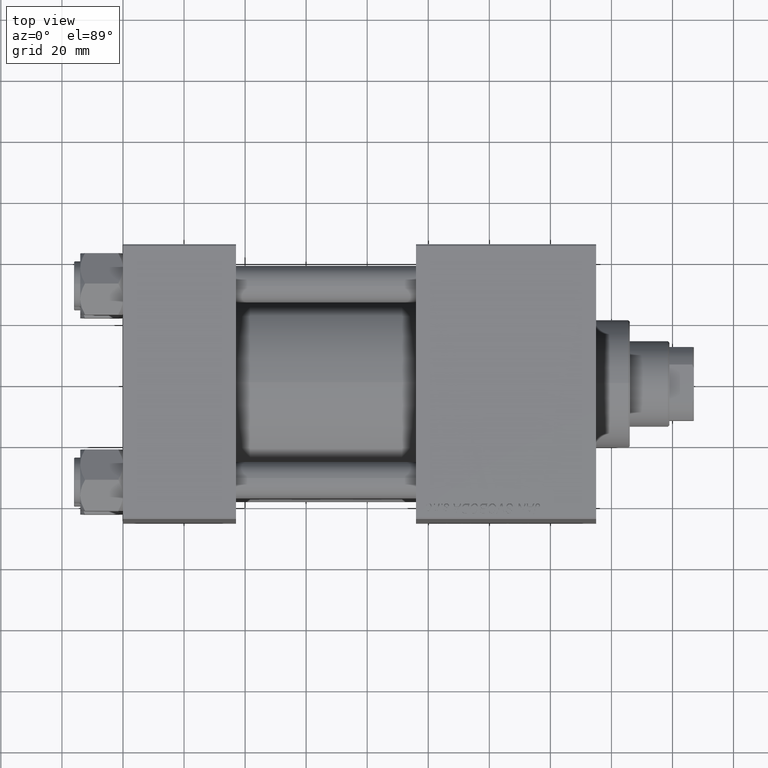
[diagram: clean part render]
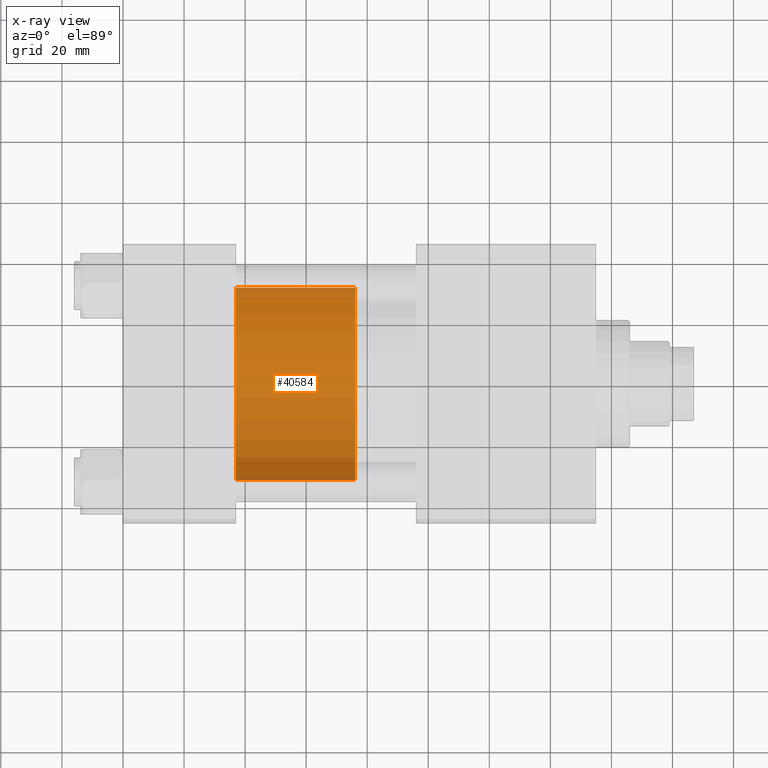
[diagram: x-ray — body ghosted, one internal face saturated and labeled with its STEP entity id]
A machine part, top view, then the same camera in x-ray: the body is ghosted and one INTERNAL B-rep face — a face not visible from any outside direction — is saturated and labeled: STEP entity #40584.
In plain terms, the highlighted cylindrical surface (partial cylindrical patch) has radius 31.5 mm, axis along (-1, 0, 0).
Its self-contained STEP definition (entity closure, byte-faithful):
#1100 = EDGE_CURVE ( 'NONE', #16179, #24836, #33698, .T. ) ;
#2324 = CIRCLE ( 'NONE', #43811, 31.50000000000000000 ) ;
#3053 = CARTESIAN_POINT ( 'NONE',  ( 0.000000000000000000, 0.000000000000000000, 39.00000000000000000 ) ) ;
#4887 = EDGE_CURVE ( 'NONE', #24836, #31312, #40722, .T. ) ;
#8447 = VECTOR ( 'NONE', #37162, 1000.000000000000000 ) ;
#10959 = FACE_OUTER_BOUND ( 'NONE', #49681, .T. ) ;
#13370 = AXIS2_PLACEMENT_3D ( 'NONE', #31997, #36562, #43707 ) ;
#14702 = CARTESIAN_POINT ( 'NONE',  ( 0.000000000000000000, 0.000000000000000000, 0.000000000000000000 ) ) ;
#15934 = ORIENTED_EDGE ( 'NONE', *, *, #31040, .T. ) ;
#16179 = VERTEX_POINT ( 'NONE', #16589 ) ;
#16589 = CARTESIAN_POINT ( 'NONE',  ( 31.50000000000000000, 3.857637417314162689E-15, 39.00000000000000000 ) ) ;
#17241 = DIRECTION ( 'NONE',  ( -0.000000000000000000, -0.000000000000000000, -1.000000000000000000 ) ) ;
#20563 = LINE ( 'NONE', #21070, #26660 ) ;
#21070 = CARTESIAN_POINT ( 'NONE',  ( 31.50000000000000000, 3.857637417314162689E-15, 39.00000000000000000 ) ) ;
#21183 = CARTESIAN_POINT ( 'NONE',  ( 31.50000000000000000, 3.857637417314162689E-15, 0.000000000000000000 ) ) ;
#21390 = CARTESIAN_POINT ( 'NONE',  ( -31.50000000000000000, 0.000000000000000000, 39.00000000000000000 ) ) ;
#21604 = EDGE_CURVE ( 'NONE', #16179, #40442, #20563, .T. ) ;
#23781 = CARTESIAN_POINT ( 'NONE',  ( -31.50000000000000000, 0.000000000000000000, 0.000000000000000000 ) ) ;
#24836 = VERTEX_POINT ( 'NONE', #26869 ) ;
#26660 = VECTOR ( 'NONE', #17241, 1000.000000000000000 ) ;
#26869 = CARTESIAN_POINT ( 'NONE',  ( -31.50000000000000000, 0.000000000000000000, 39.00000000000000000 ) ) ;
#27091 = ORIENTED_EDGE ( 'NONE', *, *, #1100, .F. ) ;
#27110 = ORIENTED_EDGE ( 'NONE', *, *, #4887, .F. ) ;
#31040 = EDGE_CURVE ( 'NONE', #40442, #31312, #2324, .T. ) ;
#31312 = VERTEX_POINT ( 'NONE', #23781 ) ;
#31997 = CARTESIAN_POINT ( 'NONE',  ( 0.000000000000000000, 0.000000000000000000, 39.00000000000000000 ) ) ;
#33416 = AXIS2_PLACEMENT_3D ( 'NONE', #3053, #34124, #49425 ) ;
#33698 = CIRCLE ( 'NONE', #13370, 31.50000000000000000 ) ;
#34124 = DIRECTION ( 'NONE',  ( -0.000000000000000000, -0.000000000000000000, -1.000000000000000000 ) ) ;
#36562 = DIRECTION ( 'NONE',  ( 0.000000000000000000, 0.000000000000000000, 1.000000000000000000 ) ) ;
#37162 = DIRECTION ( 'NONE',  ( -0.000000000000000000, -0.000000000000000000, -1.000000000000000000 ) ) ;
#40442 = VERTEX_POINT ( 'NONE', #21183 ) ;
#40584 = ADVANCED_FACE ( 'NONE', ( #10959 ), #50424, .T. ) ;
#40722 = LINE ( 'NONE', #21390, #8447 ) ;
#43707 = DIRECTION ( 'NONE',  ( 1.000000000000000000, 0.000000000000000000, 0.000000000000000000 ) ) ;
#43811 = AXIS2_PLACEMENT_3D ( 'NONE', #14702, #46022, #49846 ) ;
#46022 = DIRECTION ( 'NONE',  ( 0.000000000000000000, 0.000000000000000000, 1.000000000000000000 ) ) ;
#46145 = ORIENTED_EDGE ( 'NONE', *, *, #21604, .T. ) ;
#49425 = DIRECTION ( 'NONE',  ( -1.000000000000000000, 0.000000000000000000, 0.000000000000000000 ) ) ;
#49681 = EDGE_LOOP ( 'NONE', ( #27091, #46145, #15934, #27110 ) ) ;
#49846 = DIRECTION ( 'NONE',  ( 1.000000000000000000, 0.000000000000000000, 0.000000000000000000 ) ) ;
#50424 = CYLINDRICAL_SURFACE ( 'NONE', #33416, 31.50000000000000000 ) ;